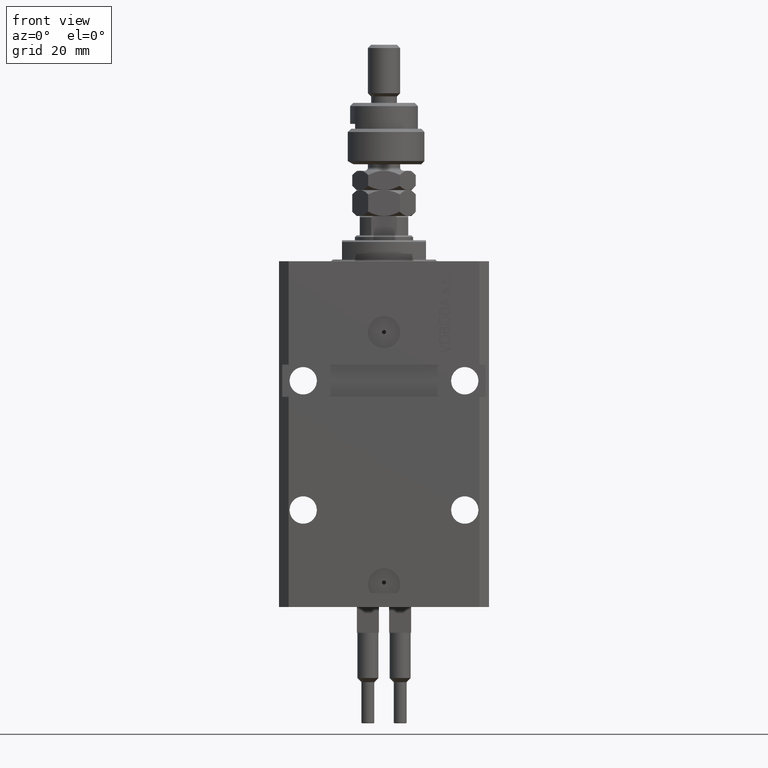
[diagram: clean part render]
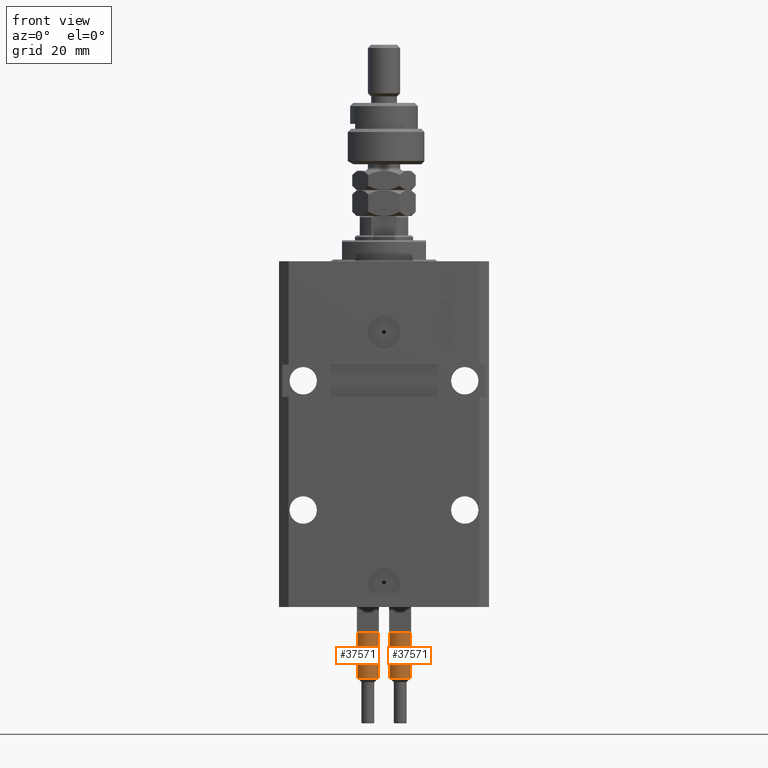
[diagram: same view with one multi-face feature highlighted, each face labeled with its STEP entity id]
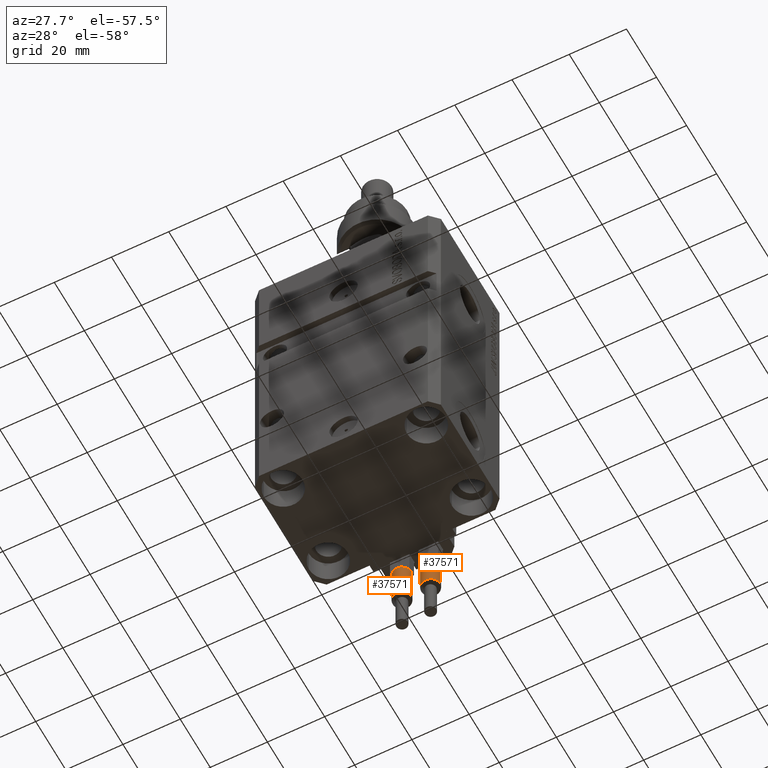
[diagram: same view with one multi-face feature highlighted, each face labeled with its STEP entity id]
A machine part, front view. The highlighted faces form ONE feature: a constant-radius fillet chain: 2 tangent blend faces with common blend radius 3.25 mm. The faces share edges in the B-rep.
A second angle (auxiliary view) of the same feature is appended — it is thin or edge-on in the first view.
Their STEP definitions:
[1] entity #37571 (Cylinder):
#34 = CARTESIAN_POINT ( 'NONE',  ( 3.250000000000000444, 3.980102097228898231E-16, 56.00000000000000000 ) ) ;
#391 = AXIS2_PLACEMENT_3D ( 'NONE', #45638, #44877, #10039 ) ;
#488 = CARTESIAN_POINT ( 'NONE',  ( 2.883140648667699146, -1.500000000000000000, 40.00000000000000000 ) ) ;
#1045 = DIRECTION ( 'NONE',  ( 0.000000000000000000, 0.000000000000000000, 1.000000000000000000 ) ) ;
#2038 = CARTESIAN_POINT ( 'NONE',  ( -3.250000000000000444, 0.000000000000000000, 53.99999999999998579 ) ) ;
#2046 = DIRECTION ( 'NONE',  ( 0.000000000000000000, 0.000000000000000000, 1.000000000000000000 ) ) ;
#3347 = CARTESIAN_POINT ( 'NONE',  ( -3.250000000000000444, 0.000000000000000000, 56.00000000000000000 ) ) ;
#4091 = AXIS2_PLACEMENT_3D ( 'NONE', #4939, #1045, #33240 ) ;
#4939 = CARTESIAN_POINT ( 'NONE',  ( 0.000000000000000000, 0.000000000000000000, 40.00000000000000000 ) ) ;
#6708 = CARTESIAN_POINT ( 'NONE',  ( 3.250000000000000444, 3.980102097228898231E-16, 53.99999999999998579 ) ) ;
#8332 = LINE ( 'NONE', #34, #23161 ) ;
#8947 = VERTEX_POINT ( 'NONE', #488 ) ;
#10039 = DIRECTION ( 'NONE',  ( 1.000000000000000000, 0.000000000000000000, 0.000000000000000000 ) ) ;
#11775 = EDGE_CURVE ( 'NONE', #18404, #21314, #32760, .T. ) ;
#13387 = CARTESIAN_POINT ( 'NONE',  ( 0.000000000000000000, 0.000000000000000000, 40.00000000000000000 ) ) ;
#13636 = DIRECTION ( 'NONE',  ( 0.000000000000000000, 0.000000000000000000, 1.000000000000000000 ) ) ;
#13985 = CARTESIAN_POINT ( 'NONE',  ( 0.000000000000000000, 0.000000000000000000, 40.00000000000000000 ) ) ;
#15867 = DIRECTION ( 'NONE',  ( -0.000000000000000000, -0.000000000000000000, -1.000000000000000000 ) ) ;
#18404 = VERTEX_POINT ( 'NONE', #6708 ) ;
#19148 = EDGE_LOOP ( 'NONE', ( #49406, #45895, #35368, #51118, #30674, #21517 ) ) ;
#20220 = VERTEX_POINT ( 'NONE', #47708 ) ;
#20418 = CIRCLE ( 'NONE', #46952, 3.250000000000000444 ) ;
#21314 = VERTEX_POINT ( 'NONE', #2038 ) ;
#21517 = ORIENTED_EDGE ( 'NONE', *, *, #24029, .T. ) ;
#21650 = AXIS2_PLACEMENT_3D ( 'NONE', #13387, #13636, #33396 ) ;
#23063 = LINE ( 'NONE', #3347, #41303 ) ;
#23161 = VECTOR ( 'NONE', #15867, 1000.000000000000000 ) ;
#24029 = EDGE_CURVE ( 'NONE', #8947, #47032, #43921, .T. ) ;
#24340 = CARTESIAN_POINT ( 'NONE',  ( 3.250000000000000444, 3.980102097228898231E-16, 40.00000000000000000 ) ) ;
#24650 = DIRECTION ( 'NONE',  ( -0.000000000000000000, -0.000000000000000000, -1.000000000000000000 ) ) ;
#24818 = EDGE_CURVE ( 'NONE', #18404, #47032, #8332, .T. ) ;
#27224 = DIRECTION ( 'NONE',  ( -0.000000000000000000, -0.000000000000000000, -1.000000000000000000 ) ) ;
#28162 = EDGE_CURVE ( 'NONE', #20220, #50957, #44068, .T. ) ;
#28527 = CARTESIAN_POINT ( 'NONE',  ( -2.883140648667699146, -1.500000000000000000, 40.00000000000000000 ) ) ;
#30674 = ORIENTED_EDGE ( 'NONE', *, *, #37743, .T. ) ;
#32760 = CIRCLE ( 'NONE', #391, 3.250000000000000444 ) ;
#33240 = DIRECTION ( 'NONE',  ( 1.000000000000000000, 0.000000000000000000, 0.000000000000000000 ) ) ;
#33396 = DIRECTION ( 'NONE',  ( 1.000000000000000000, 0.000000000000000000, 0.000000000000000000 ) ) ;
#33742 = DIRECTION ( 'NONE',  ( 1.000000000000000000, 0.000000000000000000, 0.000000000000000000 ) ) ;
#35368 = ORIENTED_EDGE ( 'NONE', *, *, #41780, .T. ) ;
#37129 = CYLINDRICAL_SURFACE ( 'NONE', #40352, 3.250000000000000444 ) ;
#37571 = ADVANCED_FACE ( 'NONE', ( #48812 ), #37129, .T. ) ;
#37743 = EDGE_CURVE ( 'NONE', #50957, #8947, #20418, .T. ) ;
#40352 = AXIS2_PLACEMENT_3D ( 'NONE', #45179, #24650, #41288 ) ;
#41288 = DIRECTION ( 'NONE',  ( -1.000000000000000000, 0.000000000000000000, 0.000000000000000000 ) ) ;
#41303 = VECTOR ( 'NONE', #27224, 1000.000000000000000 ) ;
#41780 = EDGE_CURVE ( 'NONE', #21314, #20220, #23063, .T. ) ;
#43921 = CIRCLE ( 'NONE', #4091, 3.250000000000000444 ) ;
#44068 = CIRCLE ( 'NONE', #21650, 3.250000000000000444 ) ;
#44877 = DIRECTION ( 'NONE',  ( 0.000000000000000000, 0.000000000000000000, -1.000000000000000000 ) ) ;
#45179 = CARTESIAN_POINT ( 'NONE',  ( 0.000000000000000000, 0.000000000000000000, 56.00000000000000000 ) ) ;
#45638 = CARTESIAN_POINT ( 'NONE',  ( 0.000000000000000000, 0.000000000000000000, 53.99999999999998579 ) ) ;
#45895 = ORIENTED_EDGE ( 'NONE', *, *, #11775, .T. ) ;
#46952 = AXIS2_PLACEMENT_3D ( 'NONE', #13985, #2046, #33742 ) ;
#47032 = VERTEX_POINT ( 'NONE', #24340 ) ;
#47708 = CARTESIAN_POINT ( 'NONE',  ( -3.250000000000000444, 0.000000000000000000, 40.00000000000000000 ) ) ;
#48812 = FACE_OUTER_BOUND ( 'NONE', #19148, .T. ) ;
#49406 = ORIENTED_EDGE ( 'NONE', *, *, #24818, .F. ) ;
#50957 = VERTEX_POINT ( 'NONE', #28527 ) ;
#51118 = ORIENTED_EDGE ( 'NONE', *, *, #28162, .T. ) ;
[2] entity #37571 (Cylinder):
#34 = CARTESIAN_POINT ( 'NONE',  ( 3.250000000000000444, 3.980102097228898231E-16, 56.00000000000000000 ) ) ;
#391 = AXIS2_PLACEMENT_3D ( 'NONE', #45638, #44877, #10039 ) ;
#488 = CARTESIAN_POINT ( 'NONE',  ( 2.883140648667699146, -1.500000000000000000, 40.00000000000000000 ) ) ;
#1045 = DIRECTION ( 'NONE',  ( 0.000000000000000000, 0.000000000000000000, 1.000000000000000000 ) ) ;
#2038 = CARTESIAN_POINT ( 'NONE',  ( -3.250000000000000444, 0.000000000000000000, 53.99999999999998579 ) ) ;
#2046 = DIRECTION ( 'NONE',  ( 0.000000000000000000, 0.000000000000000000, 1.000000000000000000 ) ) ;
#3347 = CARTESIAN_POINT ( 'NONE',  ( -3.250000000000000444, 0.000000000000000000, 56.00000000000000000 ) ) ;
#4091 = AXIS2_PLACEMENT_3D ( 'NONE', #4939, #1045, #33240 ) ;
#4939 = CARTESIAN_POINT ( 'NONE',  ( 0.000000000000000000, 0.000000000000000000, 40.00000000000000000 ) ) ;
#6708 = CARTESIAN_POINT ( 'NONE',  ( 3.250000000000000444, 3.980102097228898231E-16, 53.99999999999998579 ) ) ;
#8332 = LINE ( 'NONE', #34, #23161 ) ;
#8947 = VERTEX_POINT ( 'NONE', #488 ) ;
#10039 = DIRECTION ( 'NONE',  ( 1.000000000000000000, 0.000000000000000000, 0.000000000000000000 ) ) ;
#11775 = EDGE_CURVE ( 'NONE', #18404, #21314, #32760, .T. ) ;
#13387 = CARTESIAN_POINT ( 'NONE',  ( 0.000000000000000000, 0.000000000000000000, 40.00000000000000000 ) ) ;
#13636 = DIRECTION ( 'NONE',  ( 0.000000000000000000, 0.000000000000000000, 1.000000000000000000 ) ) ;
#13985 = CARTESIAN_POINT ( 'NONE',  ( 0.000000000000000000, 0.000000000000000000, 40.00000000000000000 ) ) ;
#15867 = DIRECTION ( 'NONE',  ( -0.000000000000000000, -0.000000000000000000, -1.000000000000000000 ) ) ;
#18404 = VERTEX_POINT ( 'NONE', #6708 ) ;
#19148 = EDGE_LOOP ( 'NONE', ( #49406, #45895, #35368, #51118, #30674, #21517 ) ) ;
#20220 = VERTEX_POINT ( 'NONE', #47708 ) ;
#20418 = CIRCLE ( 'NONE', #46952, 3.250000000000000444 ) ;
#21314 = VERTEX_POINT ( 'NONE', #2038 ) ;
#21517 = ORIENTED_EDGE ( 'NONE', *, *, #24029, .T. ) ;
#21650 = AXIS2_PLACEMENT_3D ( 'NONE', #13387, #13636, #33396 ) ;
#23063 = LINE ( 'NONE', #3347, #41303 ) ;
#23161 = VECTOR ( 'NONE', #15867, 1000.000000000000000 ) ;
#24029 = EDGE_CURVE ( 'NONE', #8947, #47032, #43921, .T. ) ;
#24340 = CARTESIAN_POINT ( 'NONE',  ( 3.250000000000000444, 3.980102097228898231E-16, 40.00000000000000000 ) ) ;
#24650 = DIRECTION ( 'NONE',  ( -0.000000000000000000, -0.000000000000000000, -1.000000000000000000 ) ) ;
#24818 = EDGE_CURVE ( 'NONE', #18404, #47032, #8332, .T. ) ;
#27224 = DIRECTION ( 'NONE',  ( -0.000000000000000000, -0.000000000000000000, -1.000000000000000000 ) ) ;
#28162 = EDGE_CURVE ( 'NONE', #20220, #50957, #44068, .T. ) ;
#28527 = CARTESIAN_POINT ( 'NONE',  ( -2.883140648667699146, -1.500000000000000000, 40.00000000000000000 ) ) ;
#30674 = ORIENTED_EDGE ( 'NONE', *, *, #37743, .T. ) ;
#32760 = CIRCLE ( 'NONE', #391, 3.250000000000000444 ) ;
#33240 = DIRECTION ( 'NONE',  ( 1.000000000000000000, 0.000000000000000000, 0.000000000000000000 ) ) ;
#33396 = DIRECTION ( 'NONE',  ( 1.000000000000000000, 0.000000000000000000, 0.000000000000000000 ) ) ;
#33742 = DIRECTION ( 'NONE',  ( 1.000000000000000000, 0.000000000000000000, 0.000000000000000000 ) ) ;
#35368 = ORIENTED_EDGE ( 'NONE', *, *, #41780, .T. ) ;
#37129 = CYLINDRICAL_SURFACE ( 'NONE', #40352, 3.250000000000000444 ) ;
#37571 = ADVANCED_FACE ( 'NONE', ( #48812 ), #37129, .T. ) ;
#37743 = EDGE_CURVE ( 'NONE', #50957, #8947, #20418, .T. ) ;
#40352 = AXIS2_PLACEMENT_3D ( 'NONE', #45179, #24650, #41288 ) ;
#41288 = DIRECTION ( 'NONE',  ( -1.000000000000000000, 0.000000000000000000, 0.000000000000000000 ) ) ;
#41303 = VECTOR ( 'NONE', #27224, 1000.000000000000000 ) ;
#41780 = EDGE_CURVE ( 'NONE', #21314, #20220, #23063, .T. ) ;
#43921 = CIRCLE ( 'NONE', #4091, 3.250000000000000444 ) ;
#44068 = CIRCLE ( 'NONE', #21650, 3.250000000000000444 ) ;
#44877 = DIRECTION ( 'NONE',  ( 0.000000000000000000, 0.000000000000000000, -1.000000000000000000 ) ) ;
#45179 = CARTESIAN_POINT ( 'NONE',  ( 0.000000000000000000, 0.000000000000000000, 56.00000000000000000 ) ) ;
#45638 = CARTESIAN_POINT ( 'NONE',  ( 0.000000000000000000, 0.000000000000000000, 53.99999999999998579 ) ) ;
#45895 = ORIENTED_EDGE ( 'NONE', *, *, #11775, .T. ) ;
#46952 = AXIS2_PLACEMENT_3D ( 'NONE', #13985, #2046, #33742 ) ;
#47032 = VERTEX_POINT ( 'NONE', #24340 ) ;
#47708 = CARTESIAN_POINT ( 'NONE',  ( -3.250000000000000444, 0.000000000000000000, 40.00000000000000000 ) ) ;
#48812 = FACE_OUTER_BOUND ( 'NONE', #19148, .T. ) ;
#49406 = ORIENTED_EDGE ( 'NONE', *, *, #24818, .F. ) ;
#50957 = VERTEX_POINT ( 'NONE', #28527 ) ;
#51118 = ORIENTED_EDGE ( 'NONE', *, *, #28162, .T. ) ;